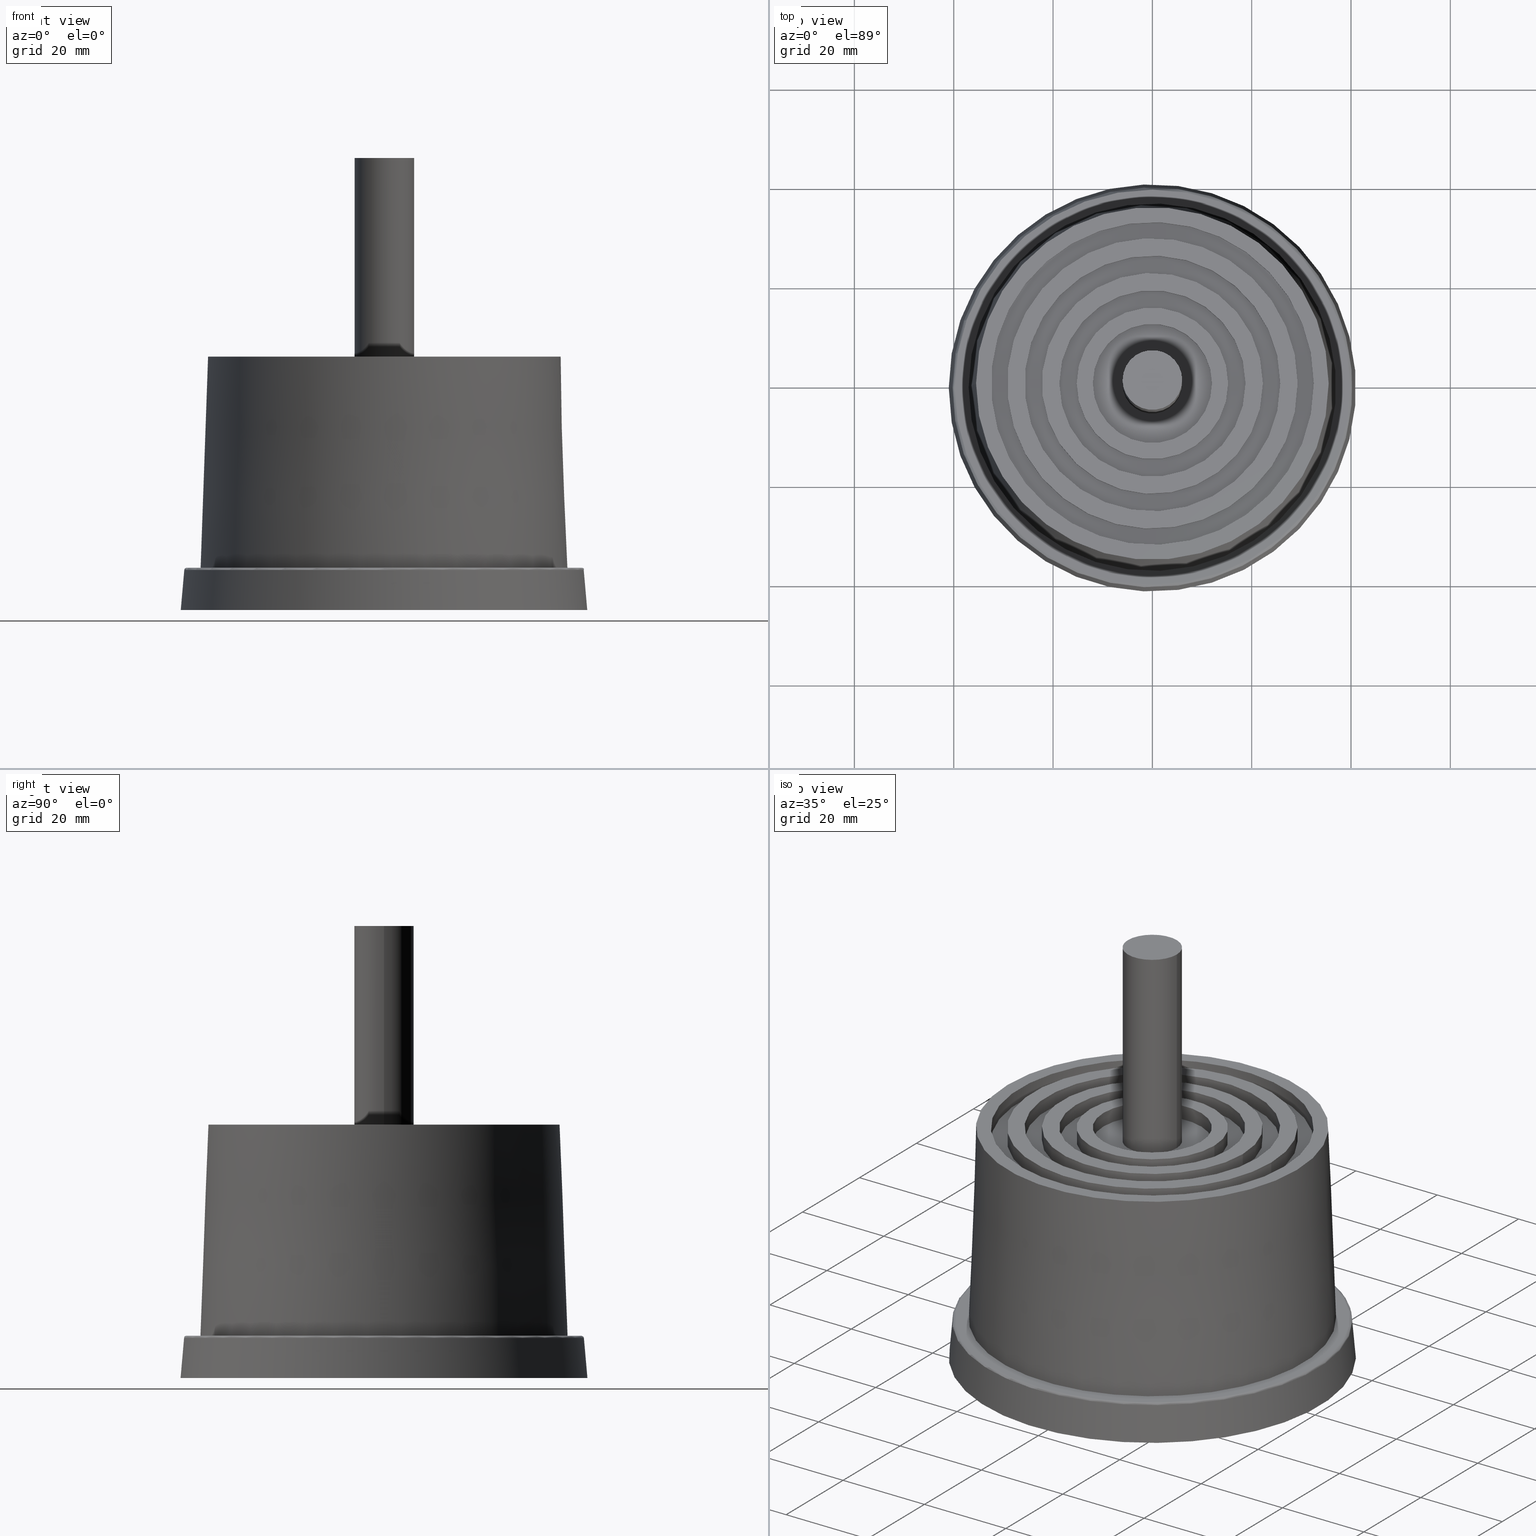
[diagram: canonical four-view strip — front | top / right | iso, engineering-drawing reading convention]
A machine part, canonical four-view strip (front | top / right | iso — engineering-drawing reading convention). The complete STEP part file that produces these views, byte-faithful:
ISO-10303-21;
HEADER;
/* Generated by software containing ST-Developer
 * from STEP Tools, Inc. (www.steptools.com) 
 */

FILE_DESCRIPTION(
/* description */ (''),
/* implementation_level */ '2;1');

FILE_NAME(
/* name */ '\\\\SYNOLOGYNAS\\web\\db2\\PRM12-4\\\X2\B3C4BA74\X0\\\DR_P
RM12-4.stp',
/* time_stamp */ '2024-01-26T13:27:19+09:00',
/* author */ ('user'),
/* organization */ (''),
/* preprocessor_version */ 'ST-DEVELOPER v15.6',
/* originating_system */ 'Autodesk Inventor 2015',
/* authorisation */ '');

FILE_SCHEMA (('AUTOMOTIVE_DESIGN { 1 0 10303 214 3 1 1 }'));
ENDSEC;

DATA;
#10=MECHANICAL_DESIGN_GEOMETRIC_PRESENTATION_REPRESENTATION('',(#13),#849);
#11=SHAPE_REPRESENTATION_RELATIONSHIP('SRR','None',#858,#12);
#12=ADVANCED_BREP_SHAPE_REPRESENTATION($,(#14),#848);
#13=STYLED_ITEM('',(#867),#14);
#14=MANIFOLD_SOLID_BREP('\X2\C194B9ACB4DC\X0\1',#468);
#15=CONICAL_SURFACE('',#508,41.,5.04245106917098);
#16=CONICAL_SURFACE('',#552,37.,2.02136494035601);
#17=TOROIDAL_SURFACE('',#503,39.7921750539448,0.5);
#18=PLANE('',#473);
#19=PLANE('',#480);
#20=PLANE('',#487);
#21=PLANE('',#494);
#22=PLANE('',#498);
#23=PLANE('',#499);
#24=PLANE('',#500);
#25=PLANE('',#501);
#26=PLANE('',#506);
#27=PLANE('',#513);
#28=PLANE('',#517);
#29=PLANE('',#524);
#30=PLANE('',#531);
#31=PLANE('',#538);
#32=PLANE('',#545);
#33=PLANE('',#546);
#34=PLANE('',#547);
#35=PLANE('',#548);
#36=PLANE('',#549);
#37=PLANE('',#550);
#38=PLANE('',#551);
#39=FACE_BOUND('',#122,.T.);
#40=FACE_BOUND('',#125,.T.);
#41=FACE_BOUND('',#127,.T.);
#42=FACE_BOUND('',#129,.T.);
#43=FACE_BOUND('',#131,.T.);
#44=FACE_BOUND('',#133,.T.);
#45=FACE_BOUND('',#135,.T.);
#46=FACE_BOUND('',#137,.T.);
#47=FACE_BOUND('',#139,.T.);
#48=FACE_BOUND('',#141,.T.);
#49=FACE_BOUND('',#143,.T.);
#50=FACE_BOUND('',#145,.T.);
#51=FACE_BOUND('',#147,.T.);
#52=FACE_BOUND('',#149,.T.);
#53=FACE_BOUND('',#151,.T.);
#54=FACE_BOUND('',#153,.T.);
#55=FACE_BOUND('',#155,.T.);
#56=FACE_BOUND('',#157,.T.);
#57=FACE_BOUND('',#159,.T.);
#58=FACE_BOUND('',#162,.T.);
#59=FACE_BOUND('',#164,.T.);
#60=FACE_BOUND('',#166,.T.);
#61=FACE_BOUND('',#168,.T.);
#62=FACE_BOUND('',#170,.T.);
#63=FACE_BOUND('',#172,.T.);
#64=FACE_BOUND('',#174,.T.);
#65=FACE_BOUND('',#176,.T.);
#66=FACE_BOUND('',#178,.T.);
#67=FACE_BOUND('',#180,.T.);
#68=FACE_BOUND('',#182,.T.);
#69=FACE_BOUND('',#184,.T.);
#70=FACE_BOUND('',#186,.T.);
#71=FACE_BOUND('',#188,.T.);
#72=FACE_BOUND('',#190,.T.);
#73=FACE_BOUND('',#192,.T.);
#74=FACE_BOUND('',#194,.T.);
#75=FACE_BOUND('',#196,.T.);
#76=FACE_BOUND('',#198,.T.);
#77=FACE_BOUND('',#200,.T.);
#78=FACE_BOUND('',#202,.T.);
#79=FACE_OUTER_BOUND('',#121,.T.);
#80=FACE_OUTER_BOUND('',#123,.T.);
#81=FACE_OUTER_BOUND('',#124,.T.);
#82=FACE_OUTER_BOUND('',#126,.T.);
#83=FACE_OUTER_BOUND('',#128,.T.);
#84=FACE_OUTER_BOUND('',#130,.T.);
#85=FACE_OUTER_BOUND('',#132,.T.);
#86=FACE_OUTER_BOUND('',#134,.T.);
#87=FACE_OUTER_BOUND('',#136,.T.);
#88=FACE_OUTER_BOUND('',#138,.T.);
#89=FACE_OUTER_BOUND('',#140,.T.);
#90=FACE_OUTER_BOUND('',#142,.T.);
#91=FACE_OUTER_BOUND('',#144,.T.);
#92=FACE_OUTER_BOUND('',#146,.T.);
#93=FACE_OUTER_BOUND('',#148,.T.);
#94=FACE_OUTER_BOUND('',#150,.T.);
#95=FACE_OUTER_BOUND('',#152,.T.);
#96=FACE_OUTER_BOUND('',#154,.T.);
#97=FACE_OUTER_BOUND('',#156,.T.);
#98=FACE_OUTER_BOUND('',#158,.T.);
#99=FACE_OUTER_BOUND('',#160,.T.);
#100=FACE_OUTER_BOUND('',#161,.T.);
#101=FACE_OUTER_BOUND('',#163,.T.);
#102=FACE_OUTER_BOUND('',#165,.T.);
#103=FACE_OUTER_BOUND('',#167,.T.);
#104=FACE_OUTER_BOUND('',#169,.T.);
#105=FACE_OUTER_BOUND('',#171,.T.);
#106=FACE_OUTER_BOUND('',#173,.T.);
#107=FACE_OUTER_BOUND('',#175,.T.);
#108=FACE_OUTER_BOUND('',#177,.T.);
#109=FACE_OUTER_BOUND('',#179,.T.);
#110=FACE_OUTER_BOUND('',#181,.T.);
#111=FACE_OUTER_BOUND('',#183,.T.);
#112=FACE_OUTER_BOUND('',#185,.T.);
#113=FACE_OUTER_BOUND('',#187,.T.);
#114=FACE_OUTER_BOUND('',#189,.T.);
#115=FACE_OUTER_BOUND('',#191,.T.);
#116=FACE_OUTER_BOUND('',#193,.T.);
#117=FACE_OUTER_BOUND('',#195,.T.);
#118=FACE_OUTER_BOUND('',#197,.T.);
#119=FACE_OUTER_BOUND('',#199,.T.);
#120=FACE_OUTER_BOUND('',#201,.T.);
#121=EDGE_LOOP('',(#326));
#122=EDGE_LOOP('',(#327));
#123=EDGE_LOOP('',(#328));
#124=EDGE_LOOP('',(#329));
#125=EDGE_LOOP('',(#330));
#126=EDGE_LOOP('',(#331));
#127=EDGE_LOOP('',(#332));
#128=EDGE_LOOP('',(#333));
#129=EDGE_LOOP('',(#334));
#130=EDGE_LOOP('',(#335));
#131=EDGE_LOOP('',(#336));
#132=EDGE_LOOP('',(#337));
#133=EDGE_LOOP('',(#338));
#134=EDGE_LOOP('',(#339));
#135=EDGE_LOOP('',(#340));
#136=EDGE_LOOP('',(#341));
#137=EDGE_LOOP('',(#342));
#138=EDGE_LOOP('',(#343));
#139=EDGE_LOOP('',(#344));
#140=EDGE_LOOP('',(#345));
#141=EDGE_LOOP('',(#346));
#142=EDGE_LOOP('',(#347));
#143=EDGE_LOOP('',(#348));
#144=EDGE_LOOP('',(#349));
#145=EDGE_LOOP('',(#350));
#146=EDGE_LOOP('',(#351));
#147=EDGE_LOOP('',(#352));
#148=EDGE_LOOP('',(#353));
#149=EDGE_LOOP('',(#354));
#150=EDGE_LOOP('',(#355));
#151=EDGE_LOOP('',(#356));
#152=EDGE_LOOP('',(#357));
#153=EDGE_LOOP('',(#358));
#154=EDGE_LOOP('',(#359));
#155=EDGE_LOOP('',(#360));
#156=EDGE_LOOP('',(#361));
#157=EDGE_LOOP('',(#362));
#158=EDGE_LOOP('',(#363));
#159=EDGE_LOOP('',(#364));
#160=EDGE_LOOP('',(#365));
#161=EDGE_LOOP('',(#366));
#162=EDGE_LOOP('',(#367));
#163=EDGE_LOOP('',(#368));
#164=EDGE_LOOP('',(#369));
#165=EDGE_LOOP('',(#370));
#166=EDGE_LOOP('',(#371));
#167=EDGE_LOOP('',(#372));
#168=EDGE_LOOP('',(#373));
#169=EDGE_LOOP('',(#374));
#170=EDGE_LOOP('',(#375));
#171=EDGE_LOOP('',(#376));
#172=EDGE_LOOP('',(#377));
#173=EDGE_LOOP('',(#378));
#174=EDGE_LOOP('',(#379));
#175=EDGE_LOOP('',(#380));
#176=EDGE_LOOP('',(#381));
#177=EDGE_LOOP('',(#382));
#178=EDGE_LOOP('',(#383));
#179=EDGE_LOOP('',(#384));
#180=EDGE_LOOP('',(#385));
#181=EDGE_LOOP('',(#386));
#182=EDGE_LOOP('',(#387));
#183=EDGE_LOOP('',(#388));
#184=EDGE_LOOP('',(#389));
#185=EDGE_LOOP('',(#390));
#186=EDGE_LOOP('',(#391));
#187=EDGE_LOOP('',(#392));
#188=EDGE_LOOP('',(#393));
#189=EDGE_LOOP('',(#394));
#190=EDGE_LOOP('',(#395));
#191=EDGE_LOOP('',(#396));
#192=EDGE_LOOP('',(#397));
#193=EDGE_LOOP('',(#398));
#194=EDGE_LOOP('',(#399));
#195=EDGE_LOOP('',(#400));
#196=EDGE_LOOP('',(#401));
#197=EDGE_LOOP('',(#402));
#198=EDGE_LOOP('',(#403));
#199=EDGE_LOOP('',(#404));
#200=EDGE_LOOP('',(#405));
#201=EDGE_LOOP('',(#406));
#202=EDGE_LOOP('',(#407));
#203=CIRCLE('',#471,6.);
#204=CIRCLE('',#472,6.);
#205=CIRCLE('',#475,29.25);
#206=CIRCLE('',#476,29.25);
#207=CIRCLE('',#478,32.5);
#208=CIRCLE('',#479,32.5);
#209=CIRCLE('',#482,22.25);
#210=CIRCLE('',#483,22.25);
#211=CIRCLE('',#485,25.75);
#212=CIRCLE('',#486,25.75);
#213=CIRCLE('',#489,15.25);
#214=CIRCLE('',#490,15.25);
#215=CIRCLE('',#492,18.75);
#216=CIRCLE('',#493,18.75);
#217=CIRCLE('',#496,12.);
#218=CIRCLE('',#497,12.);
#219=CIRCLE('',#502,35.5);
#220=CIRCLE('',#504,39.7921750539448);
#221=CIRCLE('',#505,40.2902399789575);
#222=CIRCLE('',#507,37.);
#223=CIRCLE('',#509,41.);
#224=CIRCLE('',#511,9.);
#225=CIRCLE('',#512,9.);
#226=CIRCLE('',#515,13.);
#227=CIRCLE('',#516,13.);
#228=CIRCLE('',#519,16.25);
#229=CIRCLE('',#520,16.25);
#230=CIRCLE('',#522,19.5);
#231=CIRCLE('',#523,19.5);
#232=CIRCLE('',#526,23.);
#233=CIRCLE('',#527,23.);
#234=CIRCLE('',#529,26.25);
#235=CIRCLE('',#530,26.25);
#236=CIRCLE('',#533,29.75);
#237=CIRCLE('',#534,29.75);
#238=CIRCLE('',#536,33.);
#239=CIRCLE('',#537,33.);
#240=CIRCLE('',#540,36.5);
#241=CIRCLE('',#541,36.5);
#242=CIRCLE('',#543,40.);
#243=CIRCLE('',#544,40.);
#244=VERTEX_POINT('',#723);
#245=VERTEX_POINT('',#725);
#246=VERTEX_POINT('',#729);
#247=VERTEX_POINT('',#731);
#248=VERTEX_POINT('',#734);
#249=VERTEX_POINT('',#736);
#250=VERTEX_POINT('',#740);
#251=VERTEX_POINT('',#742);
#252=VERTEX_POINT('',#745);
#253=VERTEX_POINT('',#747);
#254=VERTEX_POINT('',#751);
#255=VERTEX_POINT('',#753);
#256=VERTEX_POINT('',#756);
#257=VERTEX_POINT('',#758);
#258=VERTEX_POINT('',#762);
#259=VERTEX_POINT('',#764);
#260=VERTEX_POINT('',#770);
#261=VERTEX_POINT('',#773);
#262=VERTEX_POINT('',#775);
#263=VERTEX_POINT('',#778);
#264=VERTEX_POINT('',#781);
#265=VERTEX_POINT('',#784);
#266=VERTEX_POINT('',#786);
#267=VERTEX_POINT('',#790);
#268=VERTEX_POINT('',#792);
#269=VERTEX_POINT('',#796);
#270=VERTEX_POINT('',#798);
#271=VERTEX_POINT('',#801);
#272=VERTEX_POINT('',#803);
#273=VERTEX_POINT('',#807);
#274=VERTEX_POINT('',#809);
#275=VERTEX_POINT('',#812);
#276=VERTEX_POINT('',#814);
#277=VERTEX_POINT('',#818);
#278=VERTEX_POINT('',#820);
#279=VERTEX_POINT('',#823);
#280=VERTEX_POINT('',#825);
#281=VERTEX_POINT('',#829);
#282=VERTEX_POINT('',#831);
#283=VERTEX_POINT('',#834);
#284=VERTEX_POINT('',#836);
#285=EDGE_CURVE('',#244,#244,#203,.T.);
#286=EDGE_CURVE('',#245,#245,#204,.T.);
#287=EDGE_CURVE('',#246,#246,#205,.T.);
#288=EDGE_CURVE('',#247,#247,#206,.T.);
#289=EDGE_CURVE('',#248,#248,#207,.T.);
#290=EDGE_CURVE('',#249,#249,#208,.T.);
#291=EDGE_CURVE('',#250,#250,#209,.T.);
#292=EDGE_CURVE('',#251,#251,#210,.T.);
#293=EDGE_CURVE('',#252,#252,#211,.T.);
#294=EDGE_CURVE('',#253,#253,#212,.T.);
#295=EDGE_CURVE('',#254,#254,#213,.T.);
#296=EDGE_CURVE('',#255,#255,#214,.T.);
#297=EDGE_CURVE('',#256,#256,#215,.T.);
#298=EDGE_CURVE('',#257,#257,#216,.T.);
#299=EDGE_CURVE('',#258,#258,#217,.T.);
#300=EDGE_CURVE('',#259,#259,#218,.T.);
#301=EDGE_CURVE('',#260,#260,#219,.T.);
#302=EDGE_CURVE('',#261,#261,#220,.T.);
#303=EDGE_CURVE('',#262,#262,#221,.T.);
#304=EDGE_CURVE('',#263,#263,#222,.T.);
#305=EDGE_CURVE('',#264,#264,#223,.T.);
#306=EDGE_CURVE('',#265,#265,#224,.T.);
#307=EDGE_CURVE('',#266,#266,#225,.T.);
#308=EDGE_CURVE('',#267,#267,#226,.T.);
#309=EDGE_CURVE('',#268,#268,#227,.T.);
#310=EDGE_CURVE('',#269,#269,#228,.T.);
#311=EDGE_CURVE('',#270,#270,#229,.T.);
#312=EDGE_CURVE('',#271,#271,#230,.T.);
#313=EDGE_CURVE('',#272,#272,#231,.T.);
#314=EDGE_CURVE('',#273,#273,#232,.T.);
#315=EDGE_CURVE('',#274,#274,#233,.T.);
#316=EDGE_CURVE('',#275,#275,#234,.T.);
#317=EDGE_CURVE('',#276,#276,#235,.T.);
#318=EDGE_CURVE('',#277,#277,#236,.T.);
#319=EDGE_CURVE('',#278,#278,#237,.T.);
#320=EDGE_CURVE('',#279,#279,#238,.T.);
#321=EDGE_CURVE('',#280,#280,#239,.T.);
#322=EDGE_CURVE('',#281,#281,#240,.T.);
#323=EDGE_CURVE('',#282,#282,#241,.T.);
#324=EDGE_CURVE('',#283,#283,#242,.T.);
#325=EDGE_CURVE('',#284,#284,#243,.T.);
#326=ORIENTED_EDGE('',*,*,#285,.F.);
#327=ORIENTED_EDGE('',*,*,#286,.F.);
#328=ORIENTED_EDGE('',*,*,#285,.T.);
#329=ORIENTED_EDGE('',*,*,#287,.T.);
#330=ORIENTED_EDGE('',*,*,#288,.F.);
#331=ORIENTED_EDGE('',*,*,#289,.T.);
#332=ORIENTED_EDGE('',*,*,#290,.F.);
#333=ORIENTED_EDGE('',*,*,#289,.F.);
#334=ORIENTED_EDGE('',*,*,#287,.F.);
#335=ORIENTED_EDGE('',*,*,#291,.T.);
#336=ORIENTED_EDGE('',*,*,#292,.F.);
#337=ORIENTED_EDGE('',*,*,#293,.T.);
#338=ORIENTED_EDGE('',*,*,#294,.F.);
#339=ORIENTED_EDGE('',*,*,#293,.F.);
#340=ORIENTED_EDGE('',*,*,#291,.F.);
#341=ORIENTED_EDGE('',*,*,#295,.T.);
#342=ORIENTED_EDGE('',*,*,#296,.F.);
#343=ORIENTED_EDGE('',*,*,#297,.T.);
#344=ORIENTED_EDGE('',*,*,#298,.F.);
#345=ORIENTED_EDGE('',*,*,#297,.F.);
#346=ORIENTED_EDGE('',*,*,#295,.F.);
#347=ORIENTED_EDGE('',*,*,#299,.T.);
#348=ORIENTED_EDGE('',*,*,#300,.F.);
#349=ORIENTED_EDGE('',*,*,#299,.F.);
#350=ORIENTED_EDGE('',*,*,#286,.T.);
#351=ORIENTED_EDGE('',*,*,#292,.T.);
#352=ORIENTED_EDGE('',*,*,#298,.T.);
#353=ORIENTED_EDGE('',*,*,#288,.T.);
#354=ORIENTED_EDGE('',*,*,#294,.T.);
#355=ORIENTED_EDGE('',*,*,#301,.F.);
#356=ORIENTED_EDGE('',*,*,#290,.T.);
#357=ORIENTED_EDGE('',*,*,#302,.T.);
#358=ORIENTED_EDGE('',*,*,#303,.T.);
#359=ORIENTED_EDGE('',*,*,#302,.F.);
#360=ORIENTED_EDGE('',*,*,#304,.T.);
#361=ORIENTED_EDGE('',*,*,#305,.T.);
#362=ORIENTED_EDGE('',*,*,#303,.F.);
#363=ORIENTED_EDGE('',*,*,#306,.T.);
#364=ORIENTED_EDGE('',*,*,#307,.T.);
#365=ORIENTED_EDGE('',*,*,#307,.F.);
#366=ORIENTED_EDGE('',*,*,#308,.T.);
#367=ORIENTED_EDGE('',*,*,#309,.F.);
#368=ORIENTED_EDGE('',*,*,#308,.F.);
#369=ORIENTED_EDGE('',*,*,#306,.F.);
#370=ORIENTED_EDGE('',*,*,#310,.T.);
#371=ORIENTED_EDGE('',*,*,#311,.F.);
#372=ORIENTED_EDGE('',*,*,#312,.T.);
#373=ORIENTED_EDGE('',*,*,#313,.F.);
#374=ORIENTED_EDGE('',*,*,#312,.F.);
#375=ORIENTED_EDGE('',*,*,#310,.F.);
#376=ORIENTED_EDGE('',*,*,#314,.T.);
#377=ORIENTED_EDGE('',*,*,#315,.F.);
#378=ORIENTED_EDGE('',*,*,#316,.T.);
#379=ORIENTED_EDGE('',*,*,#317,.F.);
#380=ORIENTED_EDGE('',*,*,#316,.F.);
#381=ORIENTED_EDGE('',*,*,#314,.F.);
#382=ORIENTED_EDGE('',*,*,#318,.T.);
#383=ORIENTED_EDGE('',*,*,#319,.F.);
#384=ORIENTED_EDGE('',*,*,#320,.T.);
#385=ORIENTED_EDGE('',*,*,#321,.F.);
#386=ORIENTED_EDGE('',*,*,#320,.F.);
#387=ORIENTED_EDGE('',*,*,#318,.F.);
#388=ORIENTED_EDGE('',*,*,#322,.T.);
#389=ORIENTED_EDGE('',*,*,#323,.F.);
#390=ORIENTED_EDGE('',*,*,#324,.T.);
#391=ORIENTED_EDGE('',*,*,#325,.F.);
#392=ORIENTED_EDGE('',*,*,#324,.F.);
#393=ORIENTED_EDGE('',*,*,#322,.F.);
#394=ORIENTED_EDGE('',*,*,#305,.F.);
#395=ORIENTED_EDGE('',*,*,#325,.T.);
#396=ORIENTED_EDGE('',*,*,#323,.T.);
#397=ORIENTED_EDGE('',*,*,#321,.T.);
#398=ORIENTED_EDGE('',*,*,#319,.T.);
#399=ORIENTED_EDGE('',*,*,#317,.T.);
#400=ORIENTED_EDGE('',*,*,#315,.T.);
#401=ORIENTED_EDGE('',*,*,#313,.T.);
#402=ORIENTED_EDGE('',*,*,#311,.T.);
#403=ORIENTED_EDGE('',*,*,#309,.T.);
#404=ORIENTED_EDGE('',*,*,#296,.T.);
#405=ORIENTED_EDGE('',*,*,#300,.T.);
#406=ORIENTED_EDGE('',*,*,#304,.F.);
#407=ORIENTED_EDGE('',*,*,#301,.T.);
#408=CYLINDRICAL_SURFACE('',#470,6.);
#409=CYLINDRICAL_SURFACE('',#474,29.25);
#410=CYLINDRICAL_SURFACE('',#477,32.5);
#411=CYLINDRICAL_SURFACE('',#481,22.25);
#412=CYLINDRICAL_SURFACE('',#484,25.75);
#413=CYLINDRICAL_SURFACE('',#488,15.25);
#414=CYLINDRICAL_SURFACE('',#491,18.75);
#415=CYLINDRICAL_SURFACE('',#495,12.);
#416=CYLINDRICAL_SURFACE('',#510,9.);
#417=CYLINDRICAL_SURFACE('',#514,13.);
#418=CYLINDRICAL_SURFACE('',#518,16.25);
#419=CYLINDRICAL_SURFACE('',#521,19.5);
#420=CYLINDRICAL_SURFACE('',#525,23.);
#421=CYLINDRICAL_SURFACE('',#528,26.25);
#422=CYLINDRICAL_SURFACE('',#532,29.75);
#423=CYLINDRICAL_SURFACE('',#535,33.);
#424=CYLINDRICAL_SURFACE('',#539,36.5);
#425=CYLINDRICAL_SURFACE('',#542,40.);
#426=ADVANCED_FACE('',(#79,#39),#408,.T.);
#427=ADVANCED_FACE('',(#80),#18,.T.);
#428=ADVANCED_FACE('',(#81,#40),#409,.T.);
#429=ADVANCED_FACE('',(#82,#41),#410,.F.);
#430=ADVANCED_FACE('',(#83,#42),#19,.T.);
#431=ADVANCED_FACE('',(#84,#43),#411,.T.);
#432=ADVANCED_FACE('',(#85,#44),#412,.F.);
#433=ADVANCED_FACE('',(#86,#45),#20,.T.);
#434=ADVANCED_FACE('',(#87,#46),#413,.T.);
#435=ADVANCED_FACE('',(#88,#47),#414,.F.);
#436=ADVANCED_FACE('',(#89,#48),#21,.T.);
#437=ADVANCED_FACE('',(#90,#49),#415,.F.);
#438=ADVANCED_FACE('',(#91,#50),#22,.T.);
#439=ADVANCED_FACE('',(#92,#51),#23,.F.);
#440=ADVANCED_FACE('',(#93,#52),#24,.F.);
#441=ADVANCED_FACE('',(#94,#53),#25,.F.);
#442=ADVANCED_FACE('',(#95,#54),#17,.T.);
#443=ADVANCED_FACE('',(#96,#55),#26,.F.);
#444=ADVANCED_FACE('',(#97,#56),#15,.T.);
#445=ADVANCED_FACE('',(#98,#57),#416,.F.);
#446=ADVANCED_FACE('',(#99),#27,.F.);
#447=ADVANCED_FACE('',(#100,#58),#417,.F.);
#448=ADVANCED_FACE('',(#101,#59),#28,.F.);
#449=ADVANCED_FACE('',(#102,#60),#418,.T.);
#450=ADVANCED_FACE('',(#103,#61),#419,.F.);
#451=ADVANCED_FACE('',(#104,#62),#29,.F.);
#452=ADVANCED_FACE('',(#105,#63),#420,.T.);
#453=ADVANCED_FACE('',(#106,#64),#421,.F.);
#454=ADVANCED_FACE('',(#107,#65),#30,.F.);
#455=ADVANCED_FACE('',(#108,#66),#422,.T.);
#456=ADVANCED_FACE('',(#109,#67),#423,.F.);
#457=ADVANCED_FACE('',(#110,#68),#31,.F.);
#458=ADVANCED_FACE('',(#111,#69),#424,.T.);
#459=ADVANCED_FACE('',(#112,#70),#425,.F.);
#460=ADVANCED_FACE('',(#113,#71),#32,.F.);
#461=ADVANCED_FACE('',(#114,#72),#33,.F.);
#462=ADVANCED_FACE('',(#115,#73),#34,.F.);
#463=ADVANCED_FACE('',(#116,#74),#35,.F.);
#464=ADVANCED_FACE('',(#117,#75),#36,.F.);
#465=ADVANCED_FACE('',(#118,#76),#37,.F.);
#466=ADVANCED_FACE('',(#119,#77),#38,.F.);
#467=ADVANCED_FACE('',(#120,#78),#16,.T.);
#468=CLOSED_SHELL('',(#426,#427,#428,#429,#430,#431,#432,#433,#434,#435,
#436,#437,#438,#439,#440,#441,#442,#443,#444,#445,#446,#447,#448,#449,#450,
#451,#452,#453,#454,#455,#456,#457,#458,#459,#460,#461,#462,#463,#464,#465,
#466,#467));
#469=AXIS2_PLACEMENT_3D('placement',#721,#553,#554);
#470=AXIS2_PLACEMENT_3D('',#722,#555,#556);
#471=AXIS2_PLACEMENT_3D('',#724,#557,#558);
#472=AXIS2_PLACEMENT_3D('',#726,#559,#560);
#473=AXIS2_PLACEMENT_3D('',#727,#561,#562);
#474=AXIS2_PLACEMENT_3D('',#728,#563,#564);
#475=AXIS2_PLACEMENT_3D('',#730,#565,#566);
#476=AXIS2_PLACEMENT_3D('',#732,#567,#568);
#477=AXIS2_PLACEMENT_3D('',#733,#569,#570);
#478=AXIS2_PLACEMENT_3D('',#735,#571,#572);
#479=AXIS2_PLACEMENT_3D('',#737,#573,#574);
#480=AXIS2_PLACEMENT_3D('',#738,#575,#576);
#481=AXIS2_PLACEMENT_3D('',#739,#577,#578);
#482=AXIS2_PLACEMENT_3D('',#741,#579,#580);
#483=AXIS2_PLACEMENT_3D('',#743,#581,#582);
#484=AXIS2_PLACEMENT_3D('',#744,#583,#584);
#485=AXIS2_PLACEMENT_3D('',#746,#585,#586);
#486=AXIS2_PLACEMENT_3D('',#748,#587,#588);
#487=AXIS2_PLACEMENT_3D('',#749,#589,#590);
#488=AXIS2_PLACEMENT_3D('',#750,#591,#592);
#489=AXIS2_PLACEMENT_3D('',#752,#593,#594);
#490=AXIS2_PLACEMENT_3D('',#754,#595,#596);
#491=AXIS2_PLACEMENT_3D('',#755,#597,#598);
#492=AXIS2_PLACEMENT_3D('',#757,#599,#600);
#493=AXIS2_PLACEMENT_3D('',#759,#601,#602);
#494=AXIS2_PLACEMENT_3D('',#760,#603,#604);
#495=AXIS2_PLACEMENT_3D('',#761,#605,#606);
#496=AXIS2_PLACEMENT_3D('',#763,#607,#608);
#497=AXIS2_PLACEMENT_3D('',#765,#609,#610);
#498=AXIS2_PLACEMENT_3D('',#766,#611,#612);
#499=AXIS2_PLACEMENT_3D('',#767,#613,#614);
#500=AXIS2_PLACEMENT_3D('',#768,#615,#616);
#501=AXIS2_PLACEMENT_3D('',#769,#617,#618);
#502=AXIS2_PLACEMENT_3D('',#771,#619,#620);
#503=AXIS2_PLACEMENT_3D('',#772,#621,#622);
#504=AXIS2_PLACEMENT_3D('',#774,#623,#624);
#505=AXIS2_PLACEMENT_3D('',#776,#625,#626);
#506=AXIS2_PLACEMENT_3D('',#777,#627,#628);
#507=AXIS2_PLACEMENT_3D('',#779,#629,#630);
#508=AXIS2_PLACEMENT_3D('',#780,#631,#632);
#509=AXIS2_PLACEMENT_3D('',#782,#633,#634);
#510=AXIS2_PLACEMENT_3D('',#783,#635,#636);
#511=AXIS2_PLACEMENT_3D('',#785,#637,#638);
#512=AXIS2_PLACEMENT_3D('',#787,#639,#640);
#513=AXIS2_PLACEMENT_3D('',#788,#641,#642);
#514=AXIS2_PLACEMENT_3D('',#789,#643,#644);
#515=AXIS2_PLACEMENT_3D('',#791,#645,#646);
#516=AXIS2_PLACEMENT_3D('',#793,#647,#648);
#517=AXIS2_PLACEMENT_3D('',#794,#649,#650);
#518=AXIS2_PLACEMENT_3D('',#795,#651,#652);
#519=AXIS2_PLACEMENT_3D('',#797,#653,#654);
#520=AXIS2_PLACEMENT_3D('',#799,#655,#656);
#521=AXIS2_PLACEMENT_3D('',#800,#657,#658);
#522=AXIS2_PLACEMENT_3D('',#802,#659,#660);
#523=AXIS2_PLACEMENT_3D('',#804,#661,#662);
#524=AXIS2_PLACEMENT_3D('',#805,#663,#664);
#525=AXIS2_PLACEMENT_3D('',#806,#665,#666);
#526=AXIS2_PLACEMENT_3D('',#808,#667,#668);
#527=AXIS2_PLACEMENT_3D('',#810,#669,#670);
#528=AXIS2_PLACEMENT_3D('',#811,#671,#672);
#529=AXIS2_PLACEMENT_3D('',#813,#673,#674);
#530=AXIS2_PLACEMENT_3D('',#815,#675,#676);
#531=AXIS2_PLACEMENT_3D('',#816,#677,#678);
#532=AXIS2_PLACEMENT_3D('',#817,#679,#680);
#533=AXIS2_PLACEMENT_3D('',#819,#681,#682);
#534=AXIS2_PLACEMENT_3D('',#821,#683,#684);
#535=AXIS2_PLACEMENT_3D('',#822,#685,#686);
#536=AXIS2_PLACEMENT_3D('',#824,#687,#688);
#537=AXIS2_PLACEMENT_3D('',#826,#689,#690);
#538=AXIS2_PLACEMENT_3D('',#827,#691,#692);
#539=AXIS2_PLACEMENT_3D('',#828,#693,#694);
#540=AXIS2_PLACEMENT_3D('',#830,#695,#696);
#541=AXIS2_PLACEMENT_3D('',#832,#697,#698);
#542=AXIS2_PLACEMENT_3D('',#833,#699,#700);
#543=AXIS2_PLACEMENT_3D('',#835,#701,#702);
#544=AXIS2_PLACEMENT_3D('',#837,#703,#704);
#545=AXIS2_PLACEMENT_3D('',#838,#705,#706);
#546=AXIS2_PLACEMENT_3D('',#839,#707,#708);
#547=AXIS2_PLACEMENT_3D('',#840,#709,#710);
#548=AXIS2_PLACEMENT_3D('',#841,#711,#712);
#549=AXIS2_PLACEMENT_3D('',#842,#713,#714);
#550=AXIS2_PLACEMENT_3D('',#843,#715,#716);
#551=AXIS2_PLACEMENT_3D('',#844,#717,#718);
#552=AXIS2_PLACEMENT_3D('',#845,#719,#720);
#553=DIRECTION('axis',(0.,0.,1.));
#554=DIRECTION('refdir',(1.,0.,0.));
#555=DIRECTION('center_axis',(0.,0.,1.));
#556=DIRECTION('ref_axis',(-1.,0.,0.));
#557=DIRECTION('center_axis',(0.,0.,1.));
#558=DIRECTION('ref_axis',(-1.,0.,0.));
#559=DIRECTION('center_axis',(0.,0.,-1.));
#560=DIRECTION('ref_axis',(-1.,0.,0.));
#561=DIRECTION('center_axis',(0.,0.,1.));
#562=DIRECTION('ref_axis',(1.,0.,0.));
#563=DIRECTION('center_axis',(0.,0.,-1.));
#564=DIRECTION('ref_axis',(-1.,0.,0.));
#565=DIRECTION('center_axis',(0.,0.,1.));
#566=DIRECTION('ref_axis',(-1.,0.,0.));
#567=DIRECTION('center_axis',(0.,0.,1.));
#568=DIRECTION('ref_axis',(-1.,0.,0.));
#569=DIRECTION('center_axis',(0.,0.,-1.));
#570=DIRECTION('ref_axis',(-1.,0.,0.));
#571=DIRECTION('center_axis',(0.,0.,-1.));
#572=DIRECTION('ref_axis',(-1.,0.,0.));
#573=DIRECTION('center_axis',(0.,0.,-1.));
#574=DIRECTION('ref_axis',(-1.,0.,0.));
#575=DIRECTION('center_axis',(0.,0.,1.));
#576=DIRECTION('ref_axis',(1.,0.,0.));
#577=DIRECTION('center_axis',(0.,0.,-1.));
#578=DIRECTION('ref_axis',(-1.,0.,0.));
#579=DIRECTION('center_axis',(0.,0.,1.));
#580=DIRECTION('ref_axis',(-1.,0.,0.));
#581=DIRECTION('center_axis',(0.,0.,1.));
#582=DIRECTION('ref_axis',(-1.,0.,0.));
#583=DIRECTION('center_axis',(0.,0.,-1.));
#584=DIRECTION('ref_axis',(-1.,0.,0.));
#585=DIRECTION('center_axis',(0.,0.,-1.));
#586=DIRECTION('ref_axis',(-1.,0.,0.));
#587=DIRECTION('center_axis',(0.,0.,-1.));
#588=DIRECTION('ref_axis',(-1.,0.,0.));
#589=DIRECTION('center_axis',(0.,0.,1.));
#590=DIRECTION('ref_axis',(1.,0.,0.));
#591=DIRECTION('center_axis',(0.,0.,-1.));
#592=DIRECTION('ref_axis',(-1.,0.,0.));
#593=DIRECTION('center_axis',(0.,0.,1.));
#594=DIRECTION('ref_axis',(-1.,0.,0.));
#595=DIRECTION('center_axis',(0.,0.,1.));
#596=DIRECTION('ref_axis',(-1.,0.,0.));
#597=DIRECTION('center_axis',(0.,0.,-1.));
#598=DIRECTION('ref_axis',(-1.,0.,0.));
#599=DIRECTION('center_axis',(0.,0.,-1.));
#600=DIRECTION('ref_axis',(-1.,0.,0.));
#601=DIRECTION('center_axis',(0.,0.,-1.));
#602=DIRECTION('ref_axis',(-1.,0.,0.));
#603=DIRECTION('center_axis',(0.,0.,1.));
#604=DIRECTION('ref_axis',(1.,0.,0.));
#605=DIRECTION('center_axis',(0.,0.,-1.));
#606=DIRECTION('ref_axis',(-1.,0.,0.));
#607=DIRECTION('center_axis',(0.,0.,-1.));
#608=DIRECTION('ref_axis',(-1.,0.,0.));
#609=DIRECTION('center_axis',(0.,0.,-1.));
#610=DIRECTION('ref_axis',(-1.,0.,0.));
#611=DIRECTION('center_axis',(0.,0.,1.));
#612=DIRECTION('ref_axis',(1.,0.,0.));
#613=DIRECTION('center_axis',(0.,0.,-1.));
#614=DIRECTION('ref_axis',(-1.,0.,0.));
#615=DIRECTION('center_axis',(0.,0.,-1.));
#616=DIRECTION('ref_axis',(-1.,0.,0.));
#617=DIRECTION('center_axis',(0.,0.,-1.));
#618=DIRECTION('ref_axis',(-1.,0.,0.));
#619=DIRECTION('center_axis',(0.,0.,-1.));
#620=DIRECTION('ref_axis',(-1.,0.,0.));
#621=DIRECTION('center_axis',(0.,0.,-1.));
#622=DIRECTION('ref_axis',(-1.,0.,0.));
#623=DIRECTION('center_axis',(0.,0.,-1.));
#624=DIRECTION('ref_axis',(1.,1.22464679914735E-16,0.));
#625=DIRECTION('center_axis',(0.,0.,1.));
#626=DIRECTION('ref_axis',(1.,1.22464679914735E-16,0.));
#627=DIRECTION('center_axis',(0.,0.,-1.));
#628=DIRECTION('ref_axis',(-1.,0.,0.));
#629=DIRECTION('center_axis',(0.,0.,-1.));
#630=DIRECTION('ref_axis',(-1.,0.,0.));
#631=DIRECTION('center_axis',(0.,0.,-1.));
#632=DIRECTION('ref_axis',(-1.,0.,0.));
#633=DIRECTION('center_axis',(0.,0.,1.));
#634=DIRECTION('ref_axis',(-1.,0.,0.));
#635=DIRECTION('center_axis',(0.,0.,1.));
#636=DIRECTION('ref_axis',(1.,0.,0.));
#637=DIRECTION('center_axis',(0.,0.,-1.));
#638=DIRECTION('ref_axis',(1.,0.,0.));
#639=DIRECTION('center_axis',(0.,0.,1.));
#640=DIRECTION('ref_axis',(1.,0.,0.));
#641=DIRECTION('center_axis',(0.,0.,1.));
#642=DIRECTION('ref_axis',(1.,0.,0.));
#643=DIRECTION('center_axis',(0.,0.,1.));
#644=DIRECTION('ref_axis',(1.,0.,0.));
#645=DIRECTION('center_axis',(0.,0.,1.));
#646=DIRECTION('ref_axis',(1.,0.,0.));
#647=DIRECTION('center_axis',(0.,0.,1.));
#648=DIRECTION('ref_axis',(1.,0.,0.));
#649=DIRECTION('center_axis',(0.,0.,1.));
#650=DIRECTION('ref_axis',(1.,0.,0.));
#651=DIRECTION('center_axis',(0.,0.,1.));
#652=DIRECTION('ref_axis',(1.,0.,0.));
#653=DIRECTION('center_axis',(0.,0.,-1.));
#654=DIRECTION('ref_axis',(1.,0.,0.));
#655=DIRECTION('center_axis',(0.,0.,-1.));
#656=DIRECTION('ref_axis',(1.,0.,0.));
#657=DIRECTION('center_axis',(0.,0.,1.));
#658=DIRECTION('ref_axis',(1.,0.,0.));
#659=DIRECTION('center_axis',(0.,0.,1.));
#660=DIRECTION('ref_axis',(1.,0.,0.));
#661=DIRECTION('center_axis',(0.,0.,1.));
#662=DIRECTION('ref_axis',(1.,0.,0.));
#663=DIRECTION('center_axis',(0.,0.,1.));
#664=DIRECTION('ref_axis',(1.,0.,0.));
#665=DIRECTION('center_axis',(0.,0.,1.));
#666=DIRECTION('ref_axis',(1.,0.,0.));
#667=DIRECTION('center_axis',(0.,0.,-1.));
#668=DIRECTION('ref_axis',(1.,0.,0.));
#669=DIRECTION('center_axis',(0.,0.,-1.));
#670=DIRECTION('ref_axis',(1.,0.,0.));
#671=DIRECTION('center_axis',(0.,0.,1.));
#672=DIRECTION('ref_axis',(1.,0.,0.));
#673=DIRECTION('center_axis',(0.,0.,1.));
#674=DIRECTION('ref_axis',(1.,0.,0.));
#675=DIRECTION('center_axis',(0.,0.,1.));
#676=DIRECTION('ref_axis',(1.,0.,0.));
#677=DIRECTION('center_axis',(0.,0.,1.));
#678=DIRECTION('ref_axis',(1.,0.,0.));
#679=DIRECTION('center_axis',(0.,0.,1.));
#680=DIRECTION('ref_axis',(1.,0.,0.));
#681=DIRECTION('center_axis',(0.,0.,-1.));
#682=DIRECTION('ref_axis',(1.,0.,0.));
#683=DIRECTION('center_axis',(0.,0.,-1.));
#684=DIRECTION('ref_axis',(1.,0.,0.));
#685=DIRECTION('center_axis',(0.,0.,1.));
#686=DIRECTION('ref_axis',(1.,0.,0.));
#687=DIRECTION('center_axis',(0.,0.,1.));
#688=DIRECTION('ref_axis',(1.,0.,0.));
#689=DIRECTION('center_axis',(0.,0.,1.));
#690=DIRECTION('ref_axis',(1.,0.,0.));
#691=DIRECTION('center_axis',(0.,0.,1.));
#692=DIRECTION('ref_axis',(1.,0.,0.));
#693=DIRECTION('center_axis',(0.,0.,1.));
#694=DIRECTION('ref_axis',(1.,0.,0.));
#695=DIRECTION('center_axis',(0.,0.,-1.));
#696=DIRECTION('ref_axis',(1.,0.,0.));
#697=DIRECTION('center_axis',(0.,0.,-1.));
#698=DIRECTION('ref_axis',(1.,0.,0.));
#699=DIRECTION('center_axis',(0.,0.,1.));
#700=DIRECTION('ref_axis',(1.,0.,0.));
#701=DIRECTION('center_axis',(0.,0.,1.));
#702=DIRECTION('ref_axis',(1.,0.,0.));
#703=DIRECTION('center_axis',(0.,0.,1.));
#704=DIRECTION('ref_axis',(1.,0.,0.));
#705=DIRECTION('center_axis',(0.,0.,1.));
#706=DIRECTION('ref_axis',(1.,0.,0.));
#707=DIRECTION('center_axis',(0.,0.,1.));
#708=DIRECTION('ref_axis',(1.,0.,0.));
#709=DIRECTION('center_axis',(0.,0.,1.));
#710=DIRECTION('ref_axis',(1.,0.,0.));
#711=DIRECTION('center_axis',(0.,0.,1.));
#712=DIRECTION('ref_axis',(1.,0.,0.));
#713=DIRECTION('center_axis',(0.,0.,1.));
#714=DIRECTION('ref_axis',(1.,0.,0.));
#715=DIRECTION('center_axis',(0.,0.,1.));
#716=DIRECTION('ref_axis',(1.,0.,0.));
#717=DIRECTION('center_axis',(0.,0.,-1.));
#718=DIRECTION('ref_axis',(-1.,0.,0.));
#719=DIRECTION('center_axis',(0.,0.,-1.));
#720=DIRECTION('ref_axis',(-1.,0.,0.));
#721=CARTESIAN_POINT('',(0.,0.,0.));
#722=CARTESIAN_POINT('Origin',(0.,0.,48.));
#723=CARTESIAN_POINT('',(6.,7.34788079488412E-16,91.));
#724=CARTESIAN_POINT('Origin',(0.,0.,91.));
#725=CARTESIAN_POINT('',(6.,7.34788079488412E-16,48.));
#726=CARTESIAN_POINT('Origin',(0.,0.,48.));
#727=CARTESIAN_POINT('Origin',(-3.69627624575467E-16,-1.54197642309049E-16,
91.));
#728=CARTESIAN_POINT('Origin',(0.,0.,51.));
#729=CARTESIAN_POINT('',(29.25,3.58209188750601E-15,48.));
#730=CARTESIAN_POINT('Origin',(0.,0.,48.));
#731=CARTESIAN_POINT('',(29.25,3.58209188750601E-15,51.));
#732=CARTESIAN_POINT('Origin',(0.,0.,51.));
#733=CARTESIAN_POINT('Origin',(0.,0.,51.));
#734=CARTESIAN_POINT('',(32.5,3.9801020972289E-15,48.));
#735=CARTESIAN_POINT('Origin',(0.,0.,48.));
#736=CARTESIAN_POINT('',(32.5,3.9801020972289E-15,51.));
#737=CARTESIAN_POINT('Origin',(0.,0.,51.));
#738=CARTESIAN_POINT('Origin',(-2.153579625436E-15,0.,48.));
#739=CARTESIAN_POINT('Origin',(0.,0.,51.));
#740=CARTESIAN_POINT('',(22.25,2.72483912810286E-15,48.));
#741=CARTESIAN_POINT('Origin',(0.,0.,48.));
#742=CARTESIAN_POINT('',(22.25,2.72483912810286E-15,51.));
#743=CARTESIAN_POINT('Origin',(0.,0.,51.));
#744=CARTESIAN_POINT('Origin',(0.,0.,51.));
#745=CARTESIAN_POINT('',(25.75,3.15346550780443E-15,48.));
#746=CARTESIAN_POINT('Origin',(0.,0.,48.));
#747=CARTESIAN_POINT('',(25.75,3.15346550780443E-15,51.));
#748=CARTESIAN_POINT('Origin',(0.,0.,51.));
#749=CARTESIAN_POINT('Origin',(-1.41253431943694E-15,5.74872763559951E-16,
48.));
#750=CARTESIAN_POINT('Origin',(0.,0.,51.));
#751=CARTESIAN_POINT('',(15.25,1.86758636869971E-15,48.));
#752=CARTESIAN_POINT('Origin',(0.,0.,48.));
#753=CARTESIAN_POINT('',(15.25,1.86758636869971E-15,51.));
#754=CARTESIAN_POINT('Origin',(0.,0.,51.));
#755=CARTESIAN_POINT('Origin',(0.,0.,51.));
#756=CARTESIAN_POINT('',(18.75,2.29621274840129E-15,48.));
#757=CARTESIAN_POINT('Origin',(0.,0.,48.));
#758=CARTESIAN_POINT('',(18.75,2.29621274840129E-15,51.));
#759=CARTESIAN_POINT('Origin',(0.,0.,51.));
#760=CARTESIAN_POINT('Origin',(-1.91351062366774E-16,0.,48.));
#761=CARTESIAN_POINT('Origin',(0.,0.,51.));
#762=CARTESIAN_POINT('',(12.,1.46957615897682E-15,48.));
#763=CARTESIAN_POINT('Origin',(0.,0.,48.));
#764=CARTESIAN_POINT('',(12.,1.46957615897682E-15,51.));
#765=CARTESIAN_POINT('Origin',(0.,0.,51.));
#766=CARTESIAN_POINT('Origin',(-7.39255249150933E-16,-3.08395284618099E-16,
48.));
#767=CARTESIAN_POINT('Origin',(0.,0.,51.));
#768=CARTESIAN_POINT('Origin',(0.,0.,51.));
#769=CARTESIAN_POINT('Origin',(0.,0.,51.));
#770=CARTESIAN_POINT('',(-35.5,0.,51.));
#771=CARTESIAN_POINT('Origin',(0.,0.,51.));
#772=CARTESIAN_POINT('Origin',(0.,0.,8.));
#773=CARTESIAN_POINT('',(-39.7921750539448,0.,8.5));
#774=CARTESIAN_POINT('Origin',(0.,0.,8.5));
#775=CARTESIAN_POINT('',(-40.2902399789575,-9.86826268542181E-15,8.04394690514818));
#776=CARTESIAN_POINT('Origin',(0.,-4.93038065763132E-31,8.04394690514818));
#777=CARTESIAN_POINT('Origin',(0.,0.,8.5));
#778=CARTESIAN_POINT('',(-37.,0.,8.5));
#779=CARTESIAN_POINT('Origin',(0.,0.,8.5));
#780=CARTESIAN_POINT('Origin',(0.,0.,0.));
#781=CARTESIAN_POINT('',(-41.,0.,0.));
#782=CARTESIAN_POINT('Origin',(0.,0.,0.));
#783=CARTESIAN_POINT('Origin',(0.,0.,0.));
#784=CARTESIAN_POINT('',(-9.,1.10218211923262E-15,3.));
#785=CARTESIAN_POINT('Origin',(0.,0.,3.));
#786=CARTESIAN_POINT('',(-9.,1.10218211923262E-15,9.5));
#787=CARTESIAN_POINT('Origin',(0.,0.,9.5));
#788=CARTESIAN_POINT('Origin',(5.03042222760184E-16,2.05596856412066E-16,
9.5));
#789=CARTESIAN_POINT('Origin',(0.,0.,0.));
#790=CARTESIAN_POINT('',(-13.,1.59204083889156E-15,3.));
#791=CARTESIAN_POINT('Origin',(0.,0.,3.));
#792=CARTESIAN_POINT('',(-13.,1.59204083889156E-15,0.));
#793=CARTESIAN_POINT('Origin',(0.,0.,0.));
#794=CARTESIAN_POINT('Origin',(1.3267006990763E-16,0.,3.));
#795=CARTESIAN_POINT('Origin',(0.,0.,0.));
#796=CARTESIAN_POINT('',(-16.25,1.99005104861445E-15,3.));
#797=CARTESIAN_POINT('Origin',(0.,0.,3.));
#798=CARTESIAN_POINT('',(-16.25,1.99005104861445E-15,0.));
#799=CARTESIAN_POINT('Origin',(0.,0.,0.));
#800=CARTESIAN_POINT('Origin',(0.,0.,0.));
#801=CARTESIAN_POINT('',(-19.5,2.38806125833734E-15,3.));
#802=CARTESIAN_POINT('Origin',(0.,0.,3.));
#803=CARTESIAN_POINT('',(-19.5,2.38806125833734E-15,0.));
#804=CARTESIAN_POINT('Origin',(0.,0.,0.));
#805=CARTESIAN_POINT('Origin',(9.58131959305996E-16,3.79563427222276E-16,
3.));
#806=CARTESIAN_POINT('Origin',(0.,0.,0.));
#807=CARTESIAN_POINT('',(-23.,2.81668763803891E-15,3.));
#808=CARTESIAN_POINT('Origin',(0.,0.,3.));
#809=CARTESIAN_POINT('',(-23.,2.81668763803891E-15,0.));
#810=CARTESIAN_POINT('Origin',(0.,0.,0.));
#811=CARTESIAN_POINT('Origin',(0.,0.,0.));
#812=CARTESIAN_POINT('',(-26.25,3.2146978477618E-15,3.));
#813=CARTESIAN_POINT('Origin',(0.,0.,3.));
#814=CARTESIAN_POINT('',(-26.25,3.2146978477618E-15,0.));
#815=CARTESIAN_POINT('Origin',(0.,0.,0.));
#816=CARTESIAN_POINT('Origin',(1.3957370996311E-15,-5.6392280615881E-16,
3.));
#817=CARTESIAN_POINT('Origin',(0.,0.,0.));
#818=CARTESIAN_POINT('',(-29.75,3.64332422746338E-15,3.));
#819=CARTESIAN_POINT('Origin',(0.,0.,3.));
#820=CARTESIAN_POINT('',(-29.75,3.64332422746338E-15,0.));
#821=CARTESIAN_POINT('Origin',(0.,0.,0.));
#822=CARTESIAN_POINT('Origin',(0.,0.,0.));
#823=CARTESIAN_POINT('',(-33.,4.04133443718627E-15,3.));
#824=CARTESIAN_POINT('Origin',(0.,0.,3.));
#825=CARTESIAN_POINT('',(-33.,4.04133443718627E-15,0.));
#826=CARTESIAN_POINT('Origin',(0.,0.,0.));
#827=CARTESIAN_POINT('Origin',(2.13107770754355E-15,0.,3.));
#828=CARTESIAN_POINT('Origin',(0.,0.,0.));
#829=CARTESIAN_POINT('',(-36.5,4.46996081688784E-15,3.));
#830=CARTESIAN_POINT('Origin',(0.,0.,3.));
#831=CARTESIAN_POINT('',(-36.5,4.46996081688784E-15,0.));
#832=CARTESIAN_POINT('Origin',(0.,0.,0.));
#833=CARTESIAN_POINT('Origin',(0.,0.,0.));
#834=CARTESIAN_POINT('',(-40.,4.89858719658941E-15,3.));
#835=CARTESIAN_POINT('Origin',(0.,0.,3.));
#836=CARTESIAN_POINT('',(-40.,4.89858719658941E-15,0.));
#837=CARTESIAN_POINT('Origin',(0.,0.,0.));
#838=CARTESIAN_POINT('Origin',(1.88851296588266E-15,7.40148683083438E-16,
3.));
#839=CARTESIAN_POINT('Origin',(0.,0.,0.));
#840=CARTESIAN_POINT('Origin',(0.,0.,0.));
#841=CARTESIAN_POINT('Origin',(0.,0.,0.));
#842=CARTESIAN_POINT('Origin',(0.,0.,0.));
#843=CARTESIAN_POINT('Origin',(0.,0.,0.));
#844=CARTESIAN_POINT('Origin',(0.,0.,51.));
#845=CARTESIAN_POINT('Origin',(0.,0.,8.5));
#846=UNCERTAINTY_MEASURE_WITH_UNIT(LENGTH_MEASURE(0.01),#850,
'DISTANCE_ACCURACY_VALUE',
'Maximum model space distance between geometric entities at asserted c
onnectivities');
#847=UNCERTAINTY_MEASURE_WITH_UNIT(LENGTH_MEASURE(1.E-6),#850,
'DISTANCE_ACCURACY_VALUE',
'Maximum model space distance between geometric entities at asserted c
onnectivities');
#848=(
GEOMETRIC_REPRESENTATION_CONTEXT(3)
GLOBAL_UNCERTAINTY_ASSIGNED_CONTEXT((#846))
GLOBAL_UNIT_ASSIGNED_CONTEXT((#850,#853,#851))
REPRESENTATION_CONTEXT('','3D')
);
#849=(
GEOMETRIC_REPRESENTATION_CONTEXT(3)
GLOBAL_UNCERTAINTY_ASSIGNED_CONTEXT((#847))
GLOBAL_UNIT_ASSIGNED_CONTEXT((#850,#853,#851))
REPRESENTATION_CONTEXT('','3D')
);
#850=(
LENGTH_UNIT()
NAMED_UNIT(*)
SI_UNIT(.MILLI.,.METRE.)
);
#851=(
NAMED_UNIT(*)
SI_UNIT($,.STERADIAN.)
SOLID_ANGLE_UNIT()
);
#852=DIMENSIONAL_EXPONENTS(0.,0.,0.,0.,0.,0.,0.);
#853=(
CONVERSION_BASED_UNIT('degree',#855)
NAMED_UNIT(#852)
PLANE_ANGLE_UNIT()
);
#854=(
NAMED_UNIT(*)
PLANE_ANGLE_UNIT()
SI_UNIT($,.RADIAN.)
);
#855=PLANE_ANGLE_MEASURE_WITH_UNIT(PLANE_ANGLE_MEASURE(0.01745329252),#854);
#856=SHAPE_DEFINITION_REPRESENTATION(#857,#858);
#857=PRODUCT_DEFINITION_SHAPE('',$,#860);
#858=SHAPE_REPRESENTATION('',(#469),#848);
#859=PRODUCT_DEFINITION_CONTEXT('part definition',#864,'design');
#860=PRODUCT_DEFINITION('DR_PRM12-4','DR_PRM12-4',#861,#859);
#861=PRODUCT_DEFINITION_FORMATION('',$,#866);
#862=PRODUCT_RELATED_PRODUCT_CATEGORY('DR_PRM12-4','DR_PRM12-4',(#866));
#863=APPLICATION_PROTOCOL_DEFINITION('international standard',
'automotive_design',2009,#864);
#864=APPLICATION_CONTEXT(
'Core Data for Automotive Mechanical Design Process');
#865=PRODUCT_CONTEXT('part definition',#864,'mechanical');
#866=PRODUCT('DR_PRM12-4','DR_PRM12-4',$,(#865));
#867=PRESENTATION_STYLE_ASSIGNMENT((#868));
#868=SURFACE_STYLE_USAGE(.BOTH.,#869);
#869=SURFACE_SIDE_STYLE($,(#870));
#870=SURFACE_STYLE_FILL_AREA(#871);
#871=FILL_AREA_STYLE($,(#872));
#872=FILL_AREA_STYLE_COLOUR($,#873);
#873=COLOUR_RGB('',1.,1.,1.);
ENDSEC;
END-ISO-10303-21;
